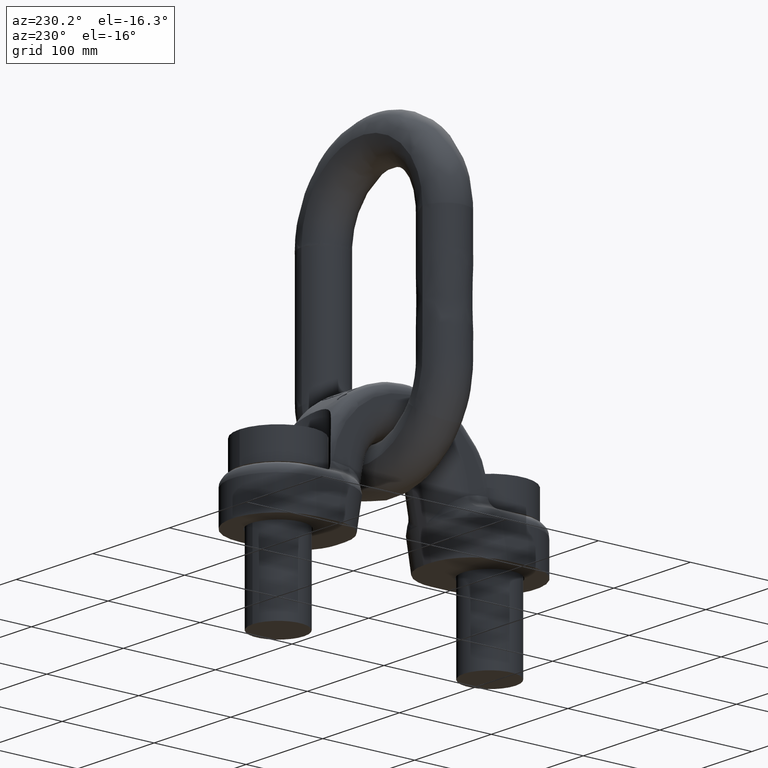
[diagram: clean part render]
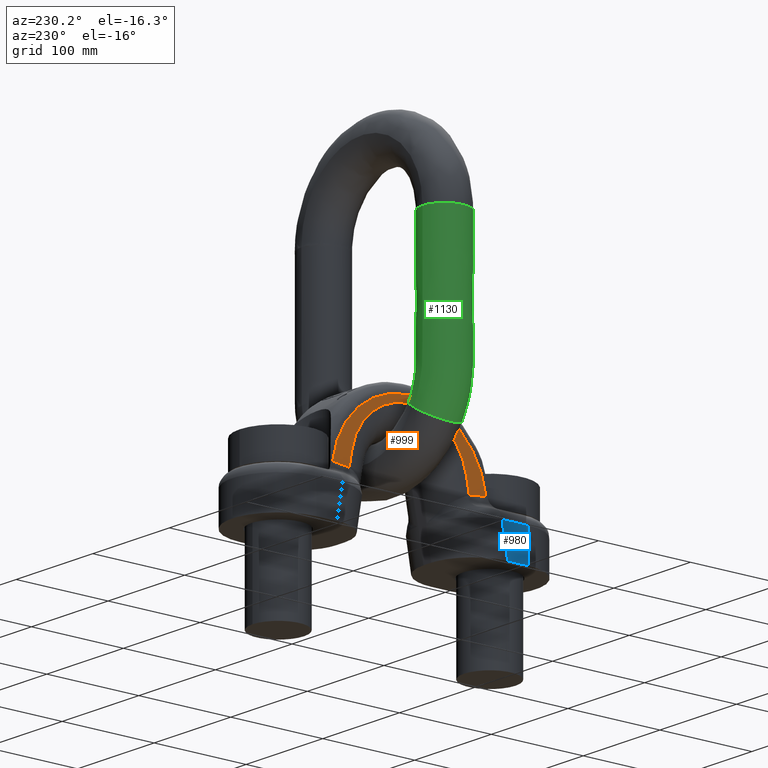
[diagram: same view with three faces highlighted in distinct colors, each labeled with its STEP entity id]
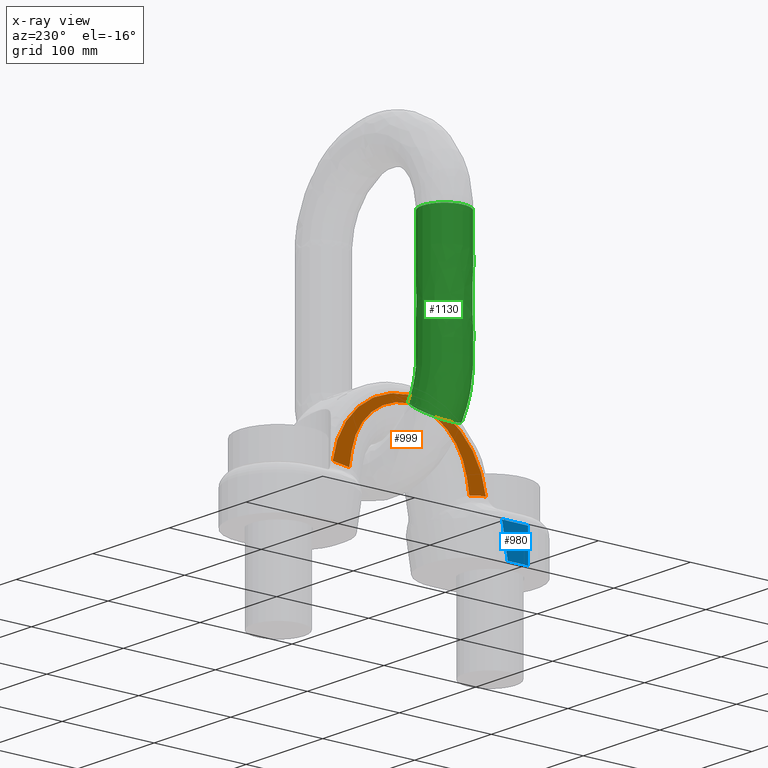
[diagram: x-ray of the same camera — body ghosted, the three highlighted faces saturated]
A machine part, auxiliary view with three faces highlighted in distinct colors.
The next image is the same camera in x-ray (body ghosted, the three faces saturated) — at least one of them is partly hidden behind the body in this view.
Their STEP definitions:

[orange] entity #999 — the highlighted planar face has unit normal (-1, 0, 0).
#754=PLANE('',#3596);
#851=FACE_OUTER_BOUND('',#1257,.T.);
#999=ADVANCED_FACE('',(#851),#754,.T.);
#1257=EDGE_LOOP('',(#2167,#2168,#2169,#2170,#2171,#2172));
#1486=B_SPLINE_CURVE_WITH_KNOTS('',3,(#5152,#5153,#5154,#5155),
 .UNSPECIFIED.,.F.,.F.,(4,4),(0.,1.),.UNSPECIFIED.);
#1487=B_SPLINE_CURVE_WITH_KNOTS('',3,(#5156,#5157,#5158,#5159),
 .UNSPECIFIED.,.F.,.F.,(4,4),(0.,1.),.UNSPECIFIED.);
#1685=LINE('',#5149,#1803);
#1686=LINE('',#5161,#1804);
#1803=VECTOR('',#3926,1.);
#1804=VECTOR('',#3927,1.);
#2167=ORIENTED_EDGE('',*,*,#3196,.T.);
#2168=ORIENTED_EDGE('',*,*,#3197,.T.);
#2169=ORIENTED_EDGE('',*,*,#3115,.T.);
#2170=ORIENTED_EDGE('',*,*,#3198,.T.);
#2171=ORIENTED_EDGE('',*,*,#3199,.T.);
#2172=ORIENTED_EDGE('',*,*,#3200,.T.);
#2845=VERTEX_POINT('',#4894);
#2846=VERTEX_POINT('',#4896);
#2903=VERTEX_POINT('',#5150);
#2904=VERTEX_POINT('',#5151);
#2905=VERTEX_POINT('',#5160);
#2906=VERTEX_POINT('',#5162);
#3115=EDGE_CURVE('',#2846,#2845,#3447,.T.);
#3196=EDGE_CURVE('',#2903,#2904,#1685,.T.);
#3197=EDGE_CURVE('',#2904,#2846,#1486,.T.);
#3198=EDGE_CURVE('',#2845,#2905,#1487,.T.);
#3199=EDGE_CURVE('',#2905,#2906,#1686,.T.);
#3200=EDGE_CURVE('',#2906,#2903,#3471,.T.);
#3447=CIRCLE('',#3542,84.);
#3471=CIRCLE('',#3595,63.5071443154641);
#3542=AXIS2_PLACEMENT_3D('',#4895,#3786,#3787);
#3595=AXIS2_PLACEMENT_3D('',#5163,#3928,#3929);
#3596=AXIS2_PLACEMENT_3D('',#5164,#3930,#3931);
#3786=DIRECTION('',(-1.,0.,0.));
#3787=DIRECTION('',(0.,0.,1.));
#3926=DIRECTION('',(0.,-0.17364817766693,-0.984807753012208));
#3927=DIRECTION('',(0.,-0.17364817766693,0.984807753012208));
#3928=DIRECTION('',(1.,0.,0.));
#3929=DIRECTION('',(0.,0.,1.));
#3930=DIRECTION('',(-1.,0.,0.));
#3931=DIRECTION('',(0.,0.,1.));
#4894=CARTESIAN_POINT('',(-33.,83.2879756163091,57.9138956260861));
#4895=CARTESIAN_POINT('',(-33.,0.,47.));
#4896=CARTESIAN_POINT('',(-33.,-83.2879756163091,57.9138956260861));
#5149=CARTESIAN_POINT('',(-33.,-4.1689318607195,402.079880683715));
#5150=CARTESIAN_POINT('',(-33.,-62.5423280935342,71.0278998792111));
#5151=CARTESIAN_POINT('',(-33.,-65.2562955163489,55.6362257751675));
#5152=CARTESIAN_POINT('',(-33.,-65.2562955163489,55.6362257751676));
#5153=CARTESIAN_POINT('',(-33.,-71.1575720220076,57.2606164184183));
#5154=CARTESIAN_POINT('',(-33.,-77.2011231790746,57.7586581312069));
#5155=CARTESIAN_POINT('',(-33.,-83.2879756163091,57.9138956260861));
#5156=CARTESIAN_POINT('',(-33.,83.2879756163091,57.9138956260861));
#5157=CARTESIAN_POINT('',(-33.,77.2011231790746,57.7586581312069));
#5158=CARTESIAN_POINT('',(-33.,71.1575720220076,57.2606164184184));
#5159=CARTESIAN_POINT('',(-33.,65.2562955163489,55.6362257751676));
#5160=CARTESIAN_POINT('',(-33.,65.2562955163489,55.6362257751676));
#5161=CARTESIAN_POINT('',(-33.,-1.62057654383328,434.913814442979));
#5162=CARTESIAN_POINT('',(-33.,62.5423280935342,71.0278998792111));
#5163=CARTESIAN_POINT('',(-33.,0.,60.));
#5164=CARTESIAN_POINT('',(-33.,-96.,418.272175663947));

[blue] entity #980 — the highlighted planar face has unit normal (1, -0, 0).
#744=PLANE('',#3547);
#836=FACE_OUTER_BOUND('',#1234,.T.);
#980=ADVANCED_FACE('',(#836),#744,.F.);
#1234=EDGE_LOOP('',(#2069,#2070,#2071,#2072));
#1655=LINE('',#5011,#1773);
#1656=LINE('',#5014,#1774);
#1657=LINE('',#5016,#1775);
#1658=LINE('',#5018,#1776);
#1773=VECTOR('',#3800,1.);
#1774=VECTOR('',#3801,1.);
#1775=VECTOR('',#3802,1.);
#1776=VECTOR('',#3803,1.);
#2069=ORIENTED_EDGE('',*,*,#3133,.F.);
#2070=ORIENTED_EDGE('',*,*,#3134,.T.);
#2071=ORIENTED_EDGE('',*,*,#3135,.T.);
#2072=ORIENTED_EDGE('',*,*,#3136,.T.);
#2859=VERTEX_POINT('',#5012);
#2860=VERTEX_POINT('',#5013);
#2861=VERTEX_POINT('',#5015);
#2862=VERTEX_POINT('',#5017);
#3133=EDGE_CURVE('',#2859,#2860,#1655,.T.);
#3134=EDGE_CURVE('',#2859,#2861,#1656,.T.);
#3135=EDGE_CURVE('',#2861,#2862,#1657,.T.);
#3136=EDGE_CURVE('',#2862,#2860,#1658,.T.);
#3547=AXIS2_PLACEMENT_3D('',#5019,#3804,#3805);
#3800=DIRECTION('',(0.,0.,-1.));
#3801=DIRECTION('',(3.01691039300314E-17,1.,-4.02254719067086E-16));
#3802=DIRECTION('',(-5.23880991929418E-18,-0.17364817766693,-0.984807753012208));
#3803=DIRECTION('',(-3.01691039300314E-17,-1.,0.));
#3804=DIRECTION('',(1.,-3.01691039300314E-17,0.));
#3805=DIRECTION('',(2.77555756156289E-17,1.,0.));
#5011=CARTESIAN_POINT('',(-50.,-115.,336.));
#5012=CARTESIAN_POINT('',(-50.,-115.,35.));
#5013=CARTESIAN_POINT('',(-50.,-115.,0.));
#5014=CARTESIAN_POINT('',(-50.,115.,34.9999999999999));
#5015=CARTESIAN_POINT('',(-50.,-86.657730080457,35.));
#5016=CARTESIAN_POINT('',(-50.,-91.4513257559441,7.81416799501182));
#5017=CARTESIAN_POINT('',(-50.,-92.8291744052532,0.));
#5018=CARTESIAN_POINT('',(-50.,115.,0.));
#5019=CARTESIAN_POINT('',(-50.,115.,336.));

[green] entity #1130 — the highlighted face is a freeform B-spline surface patch.
#33=(
BOUNDED_CURVE()
B_SPLINE_CURVE(4,(#7029,#7030,#7031,#7032,#7033,#7034,#7035,#7036,#7037,
#7038,#7039,#7040,#7041,#7042),.UNSPECIFIED.,.T.,.F.)
B_SPLINE_CURVE_WITH_KNOTS((2,3,3,3,3,3,2),(-0.25,0.,0.25,0.5,0.75,1.,1.25),
 .UNSPECIFIED.)
CURVE()
GEOMETRIC_REPRESENTATION_ITEM()
RATIONAL_B_SPLINE_CURVE((1.0166117137858,1.0166117137858,0.958470715535492,
1.0166117137858,1.0166117137858,0.958470715535492,1.0166117137858,1.0166117137858,
0.958470715535492,1.0166117137858,1.0166117137858,0.958470715535492,1.0166117137858,
1.0166117137858))
REPRESENTATION_ITEM('')
);
#34=(
BOUNDED_CURVE()
B_SPLINE_CURVE(4,(#7212,#7213,#7214,#7215,#7216,#7217,#7218,#7219,#7220,
#7221,#7222,#7223,#7224,#7225),.UNSPECIFIED.,.T.,.F.)
B_SPLINE_CURVE_WITH_KNOTS((2,3,3,3,3,3,2),(-0.25,0.,0.25,0.5,0.75,1.,1.25),
 .UNSPECIFIED.)
CURVE()
GEOMETRIC_REPRESENTATION_ITEM()
RATIONAL_B_SPLINE_CURVE((1.0166117137858,1.0166117137858,0.958470715535492,
1.0166117137858,1.0166117137858,0.958470715535492,1.0166117137858,1.0166117137858,
0.958470715535492,1.0166117137858,1.0166117137858,0.958470715535492,1.0166117137858,
1.0166117137858))
REPRESENTATION_ITEM('')
);
#822=(
BOUNDED_SURFACE()
B_SPLINE_SURFACE(4,3,((#7535,#7536,#7537,#7538,#7539,#7540,#7541,#7542,
#7543,#7544,#7545,#7546,#7547,#7548,#7549),(#7550,#7551,#7552,#7553,#7554,
#7555,#7556,#7557,#7558,#7559,#7560,#7561,#7562,#7563,#7564),(#7565,#7566,
#7567,#7568,#7569,#7570,#7571,#7572,#7573,#7574,#7575,#7576,#7577,#7578,
#7579),(#7580,#7581,#7582,#7583,#7584,#7585,#7586,#7587,#7588,#7589,#7590,
#7591,#7592,#7593,#7594),(#7595,#7596,#7597,#7598,#7599,#7600,#7601,#7602,
#7603,#7604,#7605,#7606,#7607,#7608,#7609),(#7610,#7611,#7612,#7613,#7614,
#7615,#7616,#7617,#7618,#7619,#7620,#7621,#7622,#7623,#7624),(#7625,#7626,
#7627,#7628,#7629,#7630,#7631,#7632,#7633,#7634,#7635,#7636,#7637,#7638,
#7639),(#7640,#7641,#7642,#7643,#7644,#7645,#7646,#7647,#7648,#7649,#7650,
#7651,#7652,#7653,#7654),(#7655,#7656,#7657,#7658,#7659,#7660,#7661,#7662,
#7663,#7664,#7665,#7666,#7667,#7668,#7669),(#7670,#7671,#7672,#7673,#7674,
#7675,#7676,#7677,#7678,#7679,#7680,#7681,#7682,#7683,#7684),(#7685,#7686,
#7687,#7688,#7689,#7690,#7691,#7692,#7693,#7694,#7695,#7696,#7697,#7698,
#7699),(#7700,#7701,#7702,#7703,#7704,#7705,#7706,#7707,#7708,#7709,#7710,
#7711,#7712,#7713,#7714),(#7715,#7716,#7717,#7718,#7719,#7720,#7721,#7722,
#7723,#7724,#7725,#7726,#7727,#7728,#7729),(#7730,#7731,#7732,#7733,#7734,
#7735,#7736,#7737,#7738,#7739,#7740,#7741,#7742,#7743,#7744)),
 .UNSPECIFIED.,.T.,.F.,.F.)
B_SPLINE_SURFACE_WITH_KNOTS((2,3,3,3,3,3,2),(4,1,1,1,1,1,1,1,1,1,1,1,4),
(-0.25,0.,0.25,0.5,0.75,1.,1.25),(0.,0.0267801247933285,0.0539788218389627,
0.164998183214798,0.448523644275058,0.588705012090451,0.651592352961893,
0.669977207403095,0.688279446083063,0.716614125559146,0.830900272239252,
0.923690371494078,1.),.UNSPECIFIED.)
GEOMETRIC_REPRESENTATION_ITEM()
RATIONAL_B_SPLINE_SURFACE(((1.0166117137858,1.0166117137858,1.0166117137858,
1.0166117137858,1.0166117137858,1.0166117137858,1.0166117137858,1.0166117137858,
1.0166117137858,1.0166117137858,1.0166117137858,1.0166117137858,1.0166117137858,
1.0166117137858,1.0166117137858),(1.0166117137858,1.0166117137858,1.0166117137858,
1.0166117137858,1.0166117137858,1.0166117137858,1.0166117137858,1.0166117137858,
1.0166117137858,1.0166117137858,1.0166117137858,1.0166117137858,1.0166117137858,
1.0166117137858,1.0166117137858),(0.958470715535492,0.958470715535492,0.958470715535493,
0.958470715535492,0.958470715535493,0.958470715535491,0.958470715535493,
0.958470715535492,0.958470715535493,0.958470715535491,0.958470715535494,
0.958470715535492,0.958470715535491,0.958470715535492,0.958470715535492),
(1.0166117137858,1.0166117137858,1.0166117137858,1.0166117137858,1.0166117137858,
1.0166117137858,1.0166117137858,1.0166117137858,1.0166117137858,1.0166117137858,
1.0166117137858,1.0166117137858,1.0166117137858,1.0166117137858,1.0166117137858),
(1.0166117137858,1.0166117137858,1.0166117137858,1.0166117137858,1.0166117137858,
1.0166117137858,1.0166117137858,1.0166117137858,1.0166117137858,1.0166117137858,
1.0166117137858,1.0166117137858,1.0166117137858,1.0166117137858,1.0166117137858),
(0.958470715535492,0.958470715535492,0.958470715535493,0.958470715535492,
0.958470715535493,0.958470715535491,0.958470715535493,0.958470715535492,
0.958470715535493,0.958470715535491,0.958470715535494,0.958470715535492,
0.958470715535491,0.958470715535492,0.958470715535492),(1.0166117137858,
1.0166117137858,1.0166117137858,1.0166117137858,1.0166117137858,1.0166117137858,
1.0166117137858,1.0166117137858,1.0166117137858,1.0166117137858,1.0166117137858,
1.0166117137858,1.0166117137858,1.0166117137858,1.0166117137858),(1.0166117137858,
1.0166117137858,1.0166117137858,1.0166117137858,1.0166117137858,1.0166117137858,
1.0166117137858,1.0166117137858,1.0166117137858,1.0166117137858,1.0166117137858,
1.0166117137858,1.0166117137858,1.0166117137858,1.0166117137858),(0.958470715535492,
0.958470715535492,0.958470715535493,0.958470715535492,0.958470715535493,
0.958470715535491,0.958470715535493,0.958470715535492,0.958470715535493,
0.958470715535491,0.958470715535494,0.958470715535492,0.958470715535491,
0.958470715535492,0.958470715535492),(1.0166117137858,1.0166117137858,1.0166117137858,
1.0166117137858,1.0166117137858,1.0166117137858,1.0166117137858,1.0166117137858,
1.0166117137858,1.0166117137858,1.0166117137858,1.0166117137858,1.0166117137858,
1.0166117137858,1.0166117137858),(1.0166117137858,1.0166117137858,1.0166117137858,
1.0166117137858,1.0166117137858,1.0166117137858,1.0166117137858,1.0166117137858,
1.0166117137858,1.0166117137858,1.0166117137858,1.0166117137858,1.0166117137858,
1.0166117137858,1.0166117137858),(0.958470715535492,0.958470715535492,0.958470715535493,
0.958470715535492,0.958470715535493,0.958470715535491,0.958470715535493,
0.958470715535492,0.958470715535493,0.958470715535491,0.958470715535494,
0.958470715535492,0.958470715535491,0.958470715535492,0.958470715535492),
(1.0166117137858,1.0166117137858,1.0166117137858,1.0166117137858,1.0166117137858,
1.0166117137858,1.0166117137858,1.0166117137858,1.0166117137858,1.0166117137858,
1.0166117137858,1.0166117137858,1.0166117137858,1.0166117137858,1.0166117137858),
(1.0166117137858,1.0166117137858,1.0166117137858,1.0166117137858,1.0166117137858,
1.0166117137858,1.0166117137858,1.0166117137858,1.0166117137858,1.0166117137858,
1.0166117137858,1.0166117137858,1.0166117137858,1.0166117137858,1.0166117137858)))
REPRESENTATION_ITEM('')
SURFACE()
);
#1130=ADVANCED_FACE('',(#1211,#1212),#822,.F.);
#1211=FACE_BOUND('',#1400,.T.);
#1212=FACE_BOUND('',#1401,.T.);
#1400=EDGE_LOOP('',(#2737));
#1401=EDGE_LOOP('',(#2738));
#2737=ORIENTED_EDGE('',*,*,#3415,.F.);
#2738=ORIENTED_EDGE('',*,*,#3414,.F.);
#3010=VERTEX_POINT('',#7043);
#3011=VERTEX_POINT('',#7226);
#3414=EDGE_CURVE('',#3010,#3010,#33,.T.);
#3415=EDGE_CURVE('',#3011,#3011,#34,.T.);
#7029=CARTESIAN_POINT('',(-73.8723523906407,24.,104.130348060499));
#7030=CARTESIAN_POINT('',(-59.5424517269995,24.,113.221512363064));
#7031=CARTESIAN_POINT('',(-50.0243373587497,19.7573593128807,119.25998699059));
#7032=CARTESIAN_POINT('',(-46.4418621928395,8.48528137423857,121.532778066231));
#7033=CARTESIAN_POINT('',(-46.4418621928395,-8.48528137423857,121.532778066231));
#7034=CARTESIAN_POINT('',(-50.0243373587497,-19.7573593128807,119.25998699059));
#7035=CARTESIAN_POINT('',(-59.5424517269995,-24.,113.221512363064));
#7036=CARTESIAN_POINT('',(-73.8723523906407,-24.,104.130348060499));
#7037=CARTESIAN_POINT('',(-83.3904667588903,-19.7573593128807,98.0918734329735));
#7038=CARTESIAN_POINT('',(-86.9729419248007,-8.48528137423857,95.8190823573323));
#7039=CARTESIAN_POINT('',(-86.9729419248007,8.48528137423857,95.8190823573323));
#7040=CARTESIAN_POINT('',(-83.3904667588904,19.7573593128807,98.0918734329734));
#7041=CARTESIAN_POINT('',(-73.8723523906407,24.,104.130348060499));
#7042=CARTESIAN_POINT('',(-59.5424517269995,24.,113.221512363064));
#7043=CARTESIAN_POINT('',(-66.7074020588201,24.,108.675930211782));
#7212=CARTESIAN_POINT('',(-70.5146258746103,24.,280.998765416565));
#7213=CARTESIAN_POINT('',(-87.4851663009502,24.,281.00168699898));
#7214=CARTESIAN_POINT('',(-98.757229412926,19.7573593128807,281.003627553643));
#7215=CARTESIAN_POINT('',(-102.999864519511,8.48528137423857,281.004357949247));
#7216=CARTESIAN_POINT('',(-102.999864519511,-8.48528137423858,281.004357949247));
#7217=CARTESIAN_POINT('',(-98.757229412926,-19.7573593128807,281.003627553643));
#7218=CARTESIAN_POINT('',(-87.4851663009502,-24.,281.00168699898));
#7219=CARTESIAN_POINT('',(-70.5146258746103,-24.,280.998765416565));
#7220=CARTESIAN_POINT('',(-59.2425627626345,-19.7573593128807,280.996824861902));
#7221=CARTESIAN_POINT('',(-54.9999276560495,-8.48528137423857,280.996094466298));
#7222=CARTESIAN_POINT('',(-54.9999276560496,8.48528137423858,280.996094466298));
#7223=CARTESIAN_POINT('',(-59.2425627626345,19.7573593128807,280.996824861902));
#7224=CARTESIAN_POINT('',(-70.5146258746103,24.,280.998765416565));
#7225=CARTESIAN_POINT('',(-87.4851663009502,24.,281.00168699898));
#7226=CARTESIAN_POINT('',(-78.9998960877802,24.,281.000226207773));
#7535=CARTESIAN_POINT('',(-70.5146258746103,24.,280.998765416565));
#7536=CARTESIAN_POINT('',(-70.5355061894622,24.,279.08509219439));
#7537=CARTESIAN_POINT('',(-70.5088850717697,24.,275.026711446775));
#7538=CARTESIAN_POINT('',(-70.5168255702911,24.,263.11505167545));
#7539=CARTESIAN_POINT('',(-70.5137956288878,24.,233.110690798019));
#7540=CARTESIAN_POINT('',(-70.5142953702234,24.,197.856504424803));
#7541=CARTESIAN_POINT('',(-70.5155644358537,24.,168.350214293412));
#7542=CARTESIAN_POINT('',(-70.5130573656518,24.,156.367726142245));
#7543=CARTESIAN_POINT('',(-70.5197664689006,24.,150.94501358211));
#7544=CARTESIAN_POINT('',(-70.4799748669152,24.,148.013211722089));
#7545=CARTESIAN_POINT('',(-70.0043743116228,24.,140.724947094827));
#7546=CARTESIAN_POINT('',(-68.0105970346606,24.,131.055209632525));
#7547=CARTESIAN_POINT('',(-63.9987558008525,24.,120.90004099714));
#7548=CARTESIAN_POINT('',(-60.9992840289711,24.,115.517635359961));
#7549=CARTESIAN_POINT('',(-59.5424517269995,24.,113.221512363064));
#7550=CARTESIAN_POINT('',(-87.4851663009502,24.,281.00168699898));
#7551=CARTESIAN_POINT('',(-87.5110718176367,24.,278.850878841794));
#7552=CARTESIAN_POINT('',(-87.4780438765596,24.,275.095036711858));
#7553=CARTESIAN_POINT('',(-87.4878953906965,24.,263.082709693402));
#7554=CARTESIAN_POINT('',(-87.4841362425165,24.,233.141264714999));
#7555=CARTESIAN_POINT('',(-87.4847562550776,24.,197.831766948629));
#7556=CARTESIAN_POINT('',(-87.4863307428726,24.,168.367657537593));
#7557=CARTESIAN_POINT('',(-87.4832203037124,24.,156.345195560308));
#7558=CARTESIAN_POINT('',(-87.4915440664284,24.,151.009809181127));
#7559=CARTESIAN_POINT('',(-87.4421759406698,24.,147.280179257267));
#7560=CARTESIAN_POINT('',(-86.8521140470702,24.,138.262353915351));
#7561=CARTESIAN_POINT('',(-84.3785004600314,24.,126.249687500612));
#7562=CARTESIAN_POINT('',(-79.4011416050313,24.,113.656578659617));
#7563=CARTESIAN_POINT('',(-75.6797960894637,24.,106.979184659387));
#7564=CARTESIAN_POINT('',(-73.8723523906407,24.,104.130348060499));
#7565=CARTESIAN_POINT('',(-98.757229412926,19.7573593128807,281.003627553643));
#7566=CARTESIAN_POINT('',(-98.7864727368247,19.7573593128807,278.69531115651));
#7567=CARTESIAN_POINT('',(-98.7491892967642,19.7573593128807,275.140419279579));
#7568=CARTESIAN_POINT('',(-98.7603101333902,19.7573593128808,263.061227710292));
#7569=CARTESIAN_POINT('',(-98.7560666361802,19.7573593128806,233.161572325312));
#7570=CARTESIAN_POINT('',(-98.7567665345194,19.7573593128808,197.815335981455));
#7571=CARTESIAN_POINT('',(-98.7585438878593,19.7573593128807,168.379243576949));
#7572=CARTESIAN_POINT('',(-98.7550326828533,19.7573593128808,156.330230442218));
#7573=CARTESIAN_POINT('',(-98.7644289242864,19.7573593128807,151.052847296776));
#7574=CARTESIAN_POINT('',(-98.7086999415569,19.7573593128807,146.793289152472));
#7575=CARTESIAN_POINT('',(-98.0426112746865,19.7573593128807,136.626666126935));
#7576=CARTESIAN_POINT('',(-95.2502839027757,19.7573593128807,123.057794526312));
#7577=CARTESIAN_POINT('',(-89.6316151490696,19.7573593128807,108.845372736495));
#7578=CARTESIAN_POINT('',(-85.4307913026247,19.7573593128807,101.307829902411));
#7579=CARTESIAN_POINT('',(-83.3904667588904,19.7573593128807,98.0918734329734));
#7580=CARTESIAN_POINT('',(-102.999864519511,8.48528137423857,281.004357949247));
#7581=CARTESIAN_POINT('',(-103.030364143868,8.48528137423857,278.636757818361));
#7582=CARTESIAN_POINT('',(-102.991478997962,8.48528137423856,275.15750059585));
#7583=CARTESIAN_POINT('',(-103.003077588492,8.48528137423861,263.05314221478));
#7584=CARTESIAN_POINT('',(-102.998651789586,8.48528137423855,233.169215804557));
#7585=CARTESIAN_POINT('',(-102.999381755734,8.48528137423864,197.809151612412));
#7586=CARTESIAN_POINT('',(-103.001235464613,8.48528137423855,168.383604387994));
#7587=CARTESIAN_POINT('',(-102.997573417369,8.4852813742386,156.324597796734));
#7588=CARTESIAN_POINT('',(-103.007373323668,8.48528137423855,151.06904619653));
#7589=CARTESIAN_POINT('',(-102.949250209995,8.48528137423859,146.610031036266));
#7590=CARTESIAN_POINT('',(-102.254546208549,8.48528137423855,136.011017832066));
#7591=CARTESIAN_POINT('',(-99.3422597591183,8.48528137423859,121.856413993333));
#7592=CARTESIAN_POINT('',(-93.4822116001143,8.48528137423857,107.034507152115));
#7593=CARTESIAN_POINT('',(-89.1009193177479,8.48528137423857,99.1732172272675));
#7594=CARTESIAN_POINT('',(-86.9729419248007,8.48528137423857,95.8190823573323));
#7595=CARTESIAN_POINT('',(-102.999864519511,-8.48528137423858,281.004357949247));
#7596=CARTESIAN_POINT('',(-103.030364143868,-8.48528137423858,278.636757818361));
#7597=CARTESIAN_POINT('',(-102.991478997962,-8.48528137423855,275.15750059585));
#7598=CARTESIAN_POINT('',(-103.003077588492,-8.48528137423858,263.05314221478));
#7599=CARTESIAN_POINT('',(-102.998651789587,-8.4852813742385,233.169215804557));
#7600=CARTESIAN_POINT('',(-102.999381755734,-8.48528137423862,197.809151612412));
#7601=CARTESIAN_POINT('',(-103.001235464614,-8.48528137423853,168.383604387994));
#7602=CARTESIAN_POINT('',(-102.997573417369,-8.48528137423858,156.324597796734));
#7603=CARTESIAN_POINT('',(-103.007373323668,-8.48528137423856,151.06904619653));
#7604=CARTESIAN_POINT('',(-102.949250209995,-8.48528137423857,146.610031036266));
#7605=CARTESIAN_POINT('',(-102.254546208548,-8.48528137423856,136.011017832066));
#7606=CARTESIAN_POINT('',(-99.3422597591183,-8.48528137423857,121.856413993333));
#7607=CARTESIAN_POINT('',(-93.4822116001142,-8.48528137423857,107.034507152115));
#7608=CARTESIAN_POINT('',(-89.1009193177478,-8.48528137423857,99.1732172272675));
#7609=CARTESIAN_POINT('',(-86.9729419248007,-8.48528137423857,95.8190823573323));
#7610=CARTESIAN_POINT('',(-98.757229412926,-19.7573593128807,281.003627553643));
#7611=CARTESIAN_POINT('',(-98.7864727368247,-19.7573593128807,278.69531115651));
#7612=CARTESIAN_POINT('',(-98.7491892967642,-19.7573593128807,275.140419279579));
#7613=CARTESIAN_POINT('',(-98.7603101333903,-19.7573593128808,263.061227710292));
#7614=CARTESIAN_POINT('',(-98.75606663618,-19.7573593128806,233.161572325312));
#7615=CARTESIAN_POINT('',(-98.7567665345196,-19.7573593128808,197.815335981455));
#7616=CARTESIAN_POINT('',(-98.7585438878591,-19.7573593128807,168.379243576949));
#7617=CARTESIAN_POINT('',(-98.7550326828534,-19.7573593128807,156.330230442218));
#7618=CARTESIAN_POINT('',(-98.7644289242863,-19.7573593128807,151.052847296776));
#7619=CARTESIAN_POINT('',(-98.708699941557,-19.7573593128807,146.793289152472));
#7620=CARTESIAN_POINT('',(-98.0426112746863,-19.7573593128807,136.626666126935));
#7621=CARTESIAN_POINT('',(-95.2502839027759,-19.7573593128807,123.057794526311));
#7622=CARTESIAN_POINT('',(-89.6316151490695,-19.7573593128807,108.845372736495));
#7623=CARTESIAN_POINT('',(-85.4307913026246,-19.7573593128807,101.307829902411));
#7624=CARTESIAN_POINT('',(-83.3904667588903,-19.7573593128807,98.0918734329735));
#7625=CARTESIAN_POINT('',(-87.4851663009502,-24.,281.00168699898));
#7626=CARTESIAN_POINT('',(-87.5110718176367,-24.,278.850878841794));
#7627=CARTESIAN_POINT('',(-87.4780438765596,-24.,275.095036711858));
#7628=CARTESIAN_POINT('',(-87.4878953906966,-24.,263.082709693402));
#7629=CARTESIAN_POINT('',(-87.4841362425164,-24.,233.141264714999));
#7630=CARTESIAN_POINT('',(-87.4847562550778,-24.,197.831766948629));
#7631=CARTESIAN_POINT('',(-87.4863307428725,-24.,168.367657537593));
#7632=CARTESIAN_POINT('',(-87.4832203037125,-24.,156.345195560308));
#7633=CARTESIAN_POINT('',(-87.4915440664283,-24.,151.009809181127));
#7634=CARTESIAN_POINT('',(-87.4421759406698,-24.,147.280179257267));
#7635=CARTESIAN_POINT('',(-86.8521140470702,-24.,138.262353915351));
#7636=CARTESIAN_POINT('',(-84.3785004600315,-24.,126.249687500612));
#7637=CARTESIAN_POINT('',(-79.4011416050312,-24.,113.656578659617));
#7638=CARTESIAN_POINT('',(-75.6797960894637,-24.,106.979184659387));
#7639=CARTESIAN_POINT('',(-73.8723523906407,-24.,104.130348060499));
#7640=CARTESIAN_POINT('',(-70.5146258746103,-24.,280.998765416565));
#7641=CARTESIAN_POINT('',(-70.5355061894622,-24.,279.08509219439));
#7642=CARTESIAN_POINT('',(-70.5088850717697,-24.,275.026711446775));
#7643=CARTESIAN_POINT('',(-70.5168255702911,-24.,263.11505167545));
#7644=CARTESIAN_POINT('',(-70.5137956288878,-24.,233.110690798019));
#7645=CARTESIAN_POINT('',(-70.5142953702235,-24.,197.856504424803));
#7646=CARTESIAN_POINT('',(-70.5155644358536,-24.,168.350214293412));
#7647=CARTESIAN_POINT('',(-70.5130573656518,-24.,156.367726142245));
#7648=CARTESIAN_POINT('',(-70.5197664689006,-24.,150.94501358211));
#7649=CARTESIAN_POINT('',(-70.4799748669153,-24.,148.013211722089));
#7650=CARTESIAN_POINT('',(-70.0043743116228,-24.,140.724947094827));
#7651=CARTESIAN_POINT('',(-68.0105970346606,-24.,131.055209632525));
#7652=CARTESIAN_POINT('',(-63.9987558008525,-24.,120.90004099714));
#7653=CARTESIAN_POINT('',(-60.9992840289711,-24.,115.517635359961));
#7654=CARTESIAN_POINT('',(-59.5424517269995,-24.,113.221512363064));
#7655=CARTESIAN_POINT('',(-59.2425627626345,-19.7573593128807,280.996824861902));
#7656=CARTESIAN_POINT('',(-59.2601052702742,-19.7573593128807,279.240659879673));
#7657=CARTESIAN_POINT('',(-59.2377396515651,-19.7573593128807,274.981328879053));
#7658=CARTESIAN_POINT('',(-59.2444108275974,-19.7573593128808,263.136533658561));
#7659=CARTESIAN_POINT('',(-59.2418652352242,-19.7573593128806,233.090383187706));
#7660=CARTESIAN_POINT('',(-59.2422850907816,-19.7573593128808,197.872935391977));
#7661=CARTESIAN_POINT('',(-59.2433512908672,-19.7573593128807,168.338628254056));
#7662=CARTESIAN_POINT('',(-59.2412449865107,-19.7573593128807,156.382691260335));
#7663=CARTESIAN_POINT('',(-59.2468816110428,-19.7573593128807,150.901975466462));
#7664=CARTESIAN_POINT('',(-59.2134508660281,-19.7573593128807,148.500101826884));
#7665=CARTESIAN_POINT('',(-58.8138770840065,-19.7573593128807,142.360634883243));
#7666=CARTESIAN_POINT('',(-57.1388135919162,-19.7573593128807,134.247102606825));
#7667=CARTESIAN_POINT('',(-53.7682822568142,-19.7573593128807,125.711246920262));
#7668=CARTESIAN_POINT('',(-51.2482888158101,-19.7573593128807,121.188990116937));
#7669=CARTESIAN_POINT('',(-50.0243373587497,-19.7573593128807,119.25998699059));
#7670=CARTESIAN_POINT('',(-54.9999276560495,-8.48528137423857,280.996094466298));
#7671=CARTESIAN_POINT('',(-55.0162138632306,-8.48528137423857,279.299213217822));
#7672=CARTESIAN_POINT('',(-54.9954499503676,-8.48528137423857,274.964247562783));
#7673=CARTESIAN_POINT('',(-55.0016433724961,-8.48528137423859,263.144619154073));
#7674=CARTESIAN_POINT('',(-54.999280081817,-8.48528137423858,233.082739708461));
#7675=CARTESIAN_POINT('',(-54.999669869568,-8.48528137423862,197.87911976102));
#7676=CARTESIAN_POINT('',(-55.0006597141125,-8.48528137423856,168.334267443011));
#7677=CARTESIAN_POINT('',(-54.9987042519955,-8.4852813742386,156.388323905819));
#7678=CARTESIAN_POINT('',(-55.0039372116609,-8.48528137423856,150.885776566707));
#7679=CARTESIAN_POINT('',(-54.9729005975894,-8.48528137423858,148.68335994309));
#7680=CARTESIAN_POINT('',(-54.6019421501448,-8.48528137423857,142.976283178112));
#7681=CARTESIAN_POINT('',(-53.0468377355734,-8.48528137423858,135.448483139804));
#7682=CARTESIAN_POINT('',(-49.9176858057696,-8.48528137423858,127.522112504642));
#7683=CARTESIAN_POINT('',(-47.578160800687,-8.48528137423857,123.32360279208));
#7684=CARTESIAN_POINT('',(-46.4418621928395,-8.48528137423857,121.532778066231));
#7685=CARTESIAN_POINT('',(-54.9999276560496,8.48528137423858,280.996094466298));
#7686=CARTESIAN_POINT('',(-55.0162138632306,8.48528137423858,279.299213217822));
#7687=CARTESIAN_POINT('',(-54.9954499503675,8.48528137423856,274.964247562783));
#7688=CARTESIAN_POINT('',(-55.0016433724962,8.48528137423857,263.144619154073));
#7689=CARTESIAN_POINT('',(-54.9992800818169,8.48528137423853,233.082739708461));
#7690=CARTESIAN_POINT('',(-54.9996698695681,8.48528137423857,197.87911976102));
#7691=CARTESIAN_POINT('',(-55.0006597141125,8.48528137423855,168.334267443011));
#7692=CARTESIAN_POINT('',(-54.9987042519956,8.48528137423856,156.388323905819));
#7693=CARTESIAN_POINT('',(-55.0039372116608,8.48528137423857,150.885776566707));
#7694=CARTESIAN_POINT('',(-54.9729005975894,8.48528137423857,148.68335994309));
#7695=CARTESIAN_POINT('',(-54.6019421501448,8.48528137423856,142.976283178112));
#7696=CARTESIAN_POINT('',(-53.0468377355734,8.48528137423857,135.448483139804));
#7697=CARTESIAN_POINT('',(-49.9176858057696,8.48528137423857,127.522112504642));
#7698=CARTESIAN_POINT('',(-47.578160800687,8.48528137423857,123.32360279208));
#7699=CARTESIAN_POINT('',(-46.4418621928395,8.48528137423857,121.532778066231));
#7700=CARTESIAN_POINT('',(-59.2425627626345,19.7573593128807,280.996824861902));
#7701=CARTESIAN_POINT('',(-59.2601052702742,19.7573593128807,279.240659879673));
#7702=CARTESIAN_POINT('',(-59.2377396515651,19.7573593128807,274.981328879053));
#7703=CARTESIAN_POINT('',(-59.2444108275975,19.7573593128808,263.136533658561));
#7704=CARTESIAN_POINT('',(-59.2418652352241,19.7573593128806,233.090383187706));
#7705=CARTESIAN_POINT('',(-59.2422850907818,19.7573593128808,197.872935391977));
#7706=CARTESIAN_POINT('',(-59.243351290867,19.7573593128807,168.338628254056));
#7707=CARTESIAN_POINT('',(-59.2412449865108,19.7573593128807,156.382691260335));
#7708=CARTESIAN_POINT('',(-59.2468816110427,19.7573593128807,150.901975466462));
#7709=CARTESIAN_POINT('',(-59.2134508660281,19.7573593128807,148.500101826884));
#7710=CARTESIAN_POINT('',(-58.8138770840065,19.7573593128807,142.360634883243));
#7711=CARTESIAN_POINT('',(-57.1388135919162,19.7573593128807,134.247102606825));
#7712=CARTESIAN_POINT('',(-53.7682822568142,19.7573593128807,125.711246920262));
#7713=CARTESIAN_POINT('',(-51.2482888158101,19.7573593128807,121.188990116937));
#7714=CARTESIAN_POINT('',(-50.0243373587497,19.7573593128807,119.25998699059));
#7715=CARTESIAN_POINT('',(-70.5146258746103,24.,280.998765416565));
#7716=CARTESIAN_POINT('',(-70.5355061894622,24.,279.08509219439));
#7717=CARTESIAN_POINT('',(-70.5088850717697,24.,275.026711446775));
#7718=CARTESIAN_POINT('',(-70.5168255702911,24.,263.11505167545));
#7719=CARTESIAN_POINT('',(-70.5137956288878,24.,233.110690798019));
#7720=CARTESIAN_POINT('',(-70.5142953702234,24.,197.856504424803));
#7721=CARTESIAN_POINT('',(-70.5155644358537,24.,168.350214293412));
#7722=CARTESIAN_POINT('',(-70.5130573656518,24.,156.367726142245));
#7723=CARTESIAN_POINT('',(-70.5197664689006,24.,150.94501358211));
#7724=CARTESIAN_POINT('',(-70.4799748669152,24.,148.013211722089));
#7725=CARTESIAN_POINT('',(-70.0043743116228,24.,140.724947094827));
#7726=CARTESIAN_POINT('',(-68.0105970346606,24.,131.055209632525));
#7727=CARTESIAN_POINT('',(-63.9987558008525,24.,120.90004099714));
#7728=CARTESIAN_POINT('',(-60.9992840289711,24.,115.517635359961));
#7729=CARTESIAN_POINT('',(-59.5424517269995,24.,113.221512363064));
#7730=CARTESIAN_POINT('',(-87.4851663009502,24.,281.00168699898));
#7731=CARTESIAN_POINT('',(-87.5110718176367,24.,278.850878841794));
#7732=CARTESIAN_POINT('',(-87.4780438765596,24.,275.095036711858));
#7733=CARTESIAN_POINT('',(-87.4878953906965,24.,263.082709693402));
#7734=CARTESIAN_POINT('',(-87.4841362425165,24.,233.141264714999));
#7735=CARTESIAN_POINT('',(-87.4847562550776,24.,197.831766948629));
#7736=CARTESIAN_POINT('',(-87.4863307428726,24.,168.367657537593));
#7737=CARTESIAN_POINT('',(-87.4832203037124,24.,156.345195560308));
#7738=CARTESIAN_POINT('',(-87.4915440664284,24.,151.009809181127));
#7739=CARTESIAN_POINT('',(-87.4421759406698,24.,147.280179257267));
#7740=CARTESIAN_POINT('',(-86.8521140470702,24.,138.262353915351));
#7741=CARTESIAN_POINT('',(-84.3785004600314,24.,126.249687500612));
#7742=CARTESIAN_POINT('',(-79.4011416050313,24.,113.656578659617));
#7743=CARTESIAN_POINT('',(-75.6797960894637,24.,106.979184659387));
#7744=CARTESIAN_POINT('',(-73.8723523906407,24.,104.130348060499));